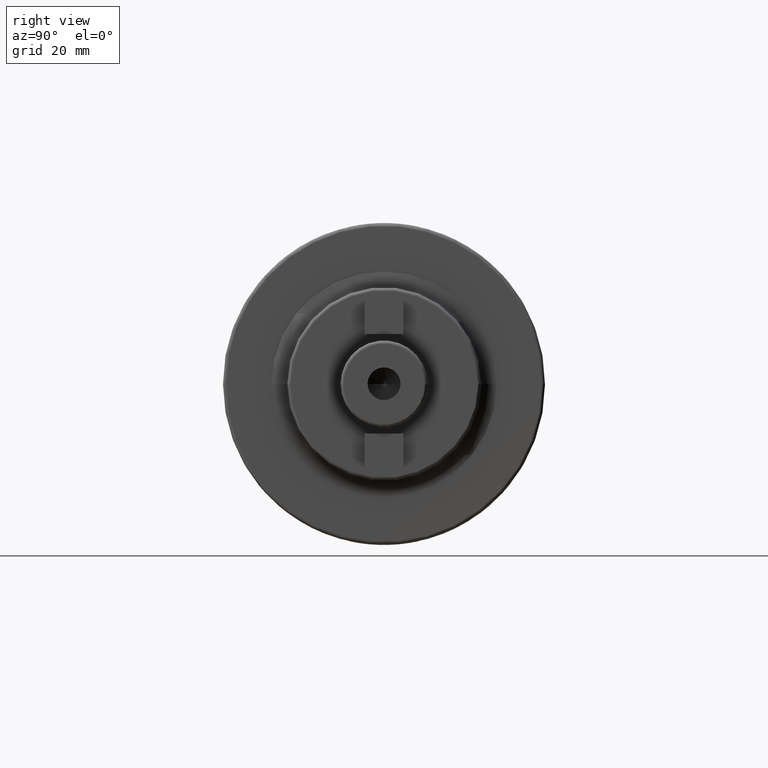
[diagram: clean part render]
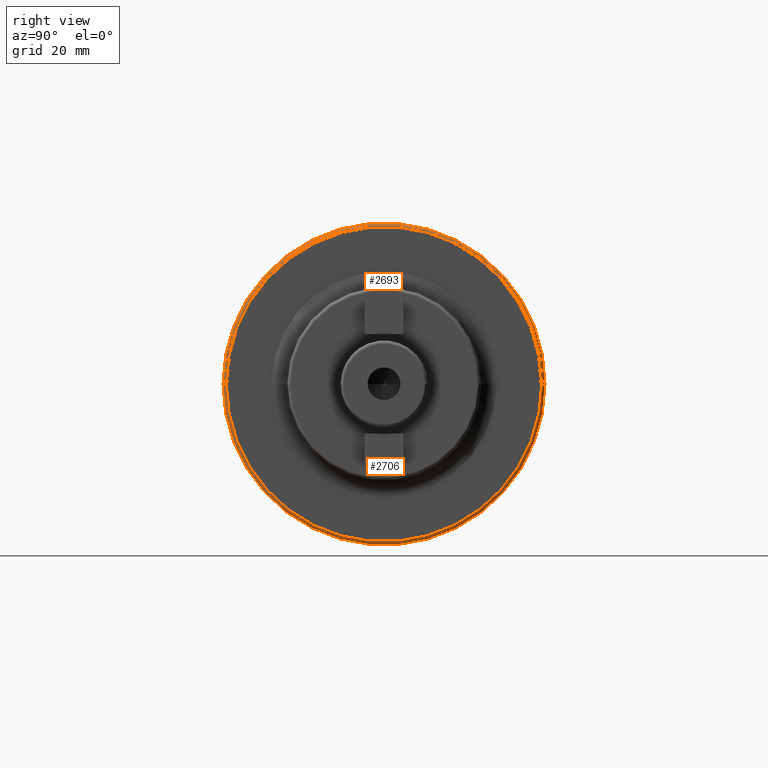
[diagram: same view with one multi-face feature highlighted, each face labeled with its STEP entity id]
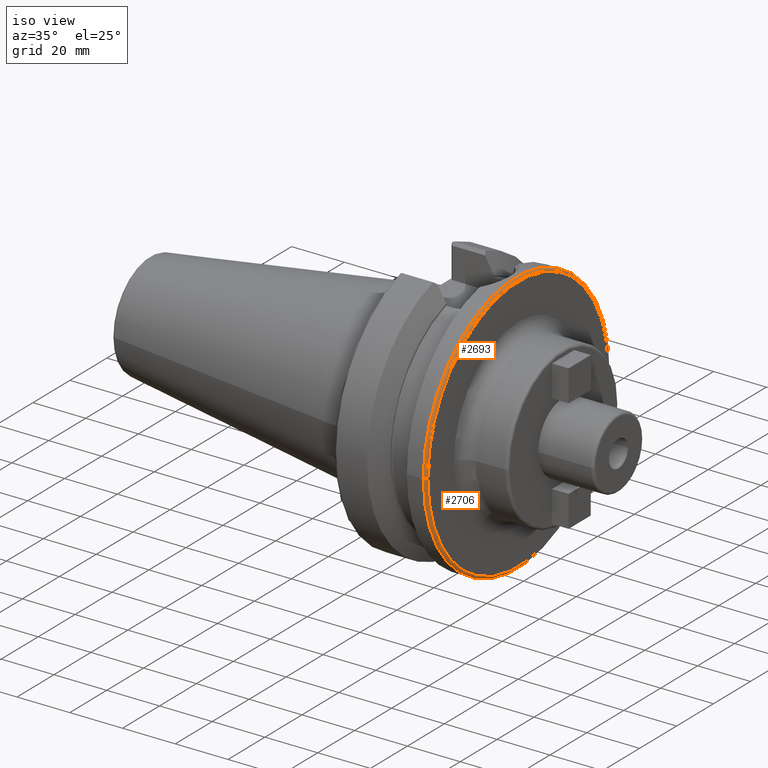
[diagram: same view with one multi-face feature highlighted, each face labeled with its STEP entity id]
A machine part, right view. The highlighted faces form ONE feature: a constant-radius fillet chain: 2 tangent blend faces with common blend radius 1 mm. The faces share edges in the B-rep.
A second angle (iso view) of the same feature is appended — it is thin or edge-on in the first view.
Their STEP definitions:
[1] entity #2706 (Torus):
#254=CARTESIAN_POINT('',(3.7E1,0.E0,0.E0));
#255=DIRECTION('',(-1.E0,0.E0,0.E0));
#256=DIRECTION('',(0.E0,1.E0,0.E0));
#257=AXIS2_PLACEMENT_3D('',#254,#255,#256);
#819=CARTESIAN_POINT('',(3.7E1,4.89875E1,0.E0));
#820=DIRECTION('',(0.E0,0.E0,1.E0));
#821=DIRECTION('',(1.E0,0.E0,0.E0));
#822=AXIS2_PLACEMENT_3D('',#819,#820,#821);
#824=CARTESIAN_POINT('',(3.7E1,-4.89875E1,-1.199847701465E-14));
#825=DIRECTION('',(0.E0,0.E0,-1.E0));
#826=DIRECTION('',(1.E0,0.E0,0.E0));
#827=AXIS2_PLACEMENT_3D('',#824,#825,#826);
#829=CARTESIAN_POINT('',(3.8E1,0.E0,0.E0));
#830=DIRECTION('',(-1.E0,0.E0,0.E0));
#831=DIRECTION('',(0.E0,1.E0,0.E0));
#832=AXIS2_PLACEMENT_3D('',#829,#830,#831);
#1366=CARTESIAN_POINT('',(3.7E1,4.99875E1,0.E0));
#1367=VERTEX_POINT('',#1366);
#1368=CARTESIAN_POINT('',(3.7E1,-4.99875E1,0.E0));
#1369=VERTEX_POINT('',#1368);
#1436=CARTESIAN_POINT('',(3.8E1,4.89875E1,0.E0));
#1437=VERTEX_POINT('',#1436);
#1438=CARTESIAN_POINT('',(3.8E1,-4.89875E1,-1.199847701465E-14));
#1439=VERTEX_POINT('',#1438);
#2694=CARTESIAN_POINT('',(3.7E1,0.E0,0.E0));
#2695=DIRECTION('',(1.E0,0.E0,0.E0));
#2696=DIRECTION('',(0.E0,-1.E0,0.E0));
#2697=AXIS2_PLACEMENT_3D('',#2694,#2695,#2696);
#2698=TOROIDAL_SURFACE('',#2697,4.89875E1,1.E0);
#2699=ORIENTED_EDGE('',*,*,#2684,.T.);
#2700=ORIENTED_EDGE('',*,*,#1933,.T.);
#2701=ORIENTED_EDGE('',*,*,#2688,.F.);
#2703=ORIENTED_EDGE('',*,*,#2702,.F.);
#2704=EDGE_LOOP('',(#2699,#2700,#2701,#2703));
#2705=FACE_OUTER_BOUND('',#2704,.F.);
#2706=ADVANCED_FACE('',(#2705),#2698,.T.);
#258=CIRCLE('',#257,4.99875E1);
#823=CIRCLE('',#822,1.E0);
#828=CIRCLE('',#827,1.E0);
#833=CIRCLE('',#832,4.89875E1);
#1933=EDGE_CURVE('',#1367,#1369,#258,.T.);
#2684=EDGE_CURVE('',#1437,#1367,#823,.T.);
#2688=EDGE_CURVE('',#1439,#1369,#828,.T.);
#2702=EDGE_CURVE('',#1437,#1439,#833,.T.);
[2] entity #2693 (Torus):
#787=CARTESIAN_POINT('',(3.7E1,0.E0,0.E0));
#788=DIRECTION('',(1.E0,0.E0,0.E0));
#789=DIRECTION('',(0.E0,1.E0,0.E0));
#790=AXIS2_PLACEMENT_3D('',#787,#788,#789);
#814=CARTESIAN_POINT('',(3.8E1,0.E0,0.E0));
#815=DIRECTION('',(1.E0,0.E0,0.E0));
#816=DIRECTION('',(0.E0,1.E0,0.E0));
#817=AXIS2_PLACEMENT_3D('',#814,#815,#816);
#819=CARTESIAN_POINT('',(3.7E1,4.89875E1,0.E0));
#820=DIRECTION('',(0.E0,0.E0,1.E0));
#821=DIRECTION('',(1.E0,0.E0,0.E0));
#822=AXIS2_PLACEMENT_3D('',#819,#820,#821);
#824=CARTESIAN_POINT('',(3.7E1,-4.89875E1,-1.199847701465E-14));
#825=DIRECTION('',(0.E0,0.E0,-1.E0));
#826=DIRECTION('',(1.E0,0.E0,0.E0));
#827=AXIS2_PLACEMENT_3D('',#824,#825,#826);
#1366=CARTESIAN_POINT('',(3.7E1,4.99875E1,0.E0));
#1367=VERTEX_POINT('',#1366);
#1368=CARTESIAN_POINT('',(3.7E1,-4.99875E1,0.E0));
#1369=VERTEX_POINT('',#1368);
#1436=CARTESIAN_POINT('',(3.8E1,4.89875E1,0.E0));
#1437=VERTEX_POINT('',#1436);
#1438=CARTESIAN_POINT('',(3.8E1,-4.89875E1,-1.199847701465E-14));
#1439=VERTEX_POINT('',#1438);
#2679=CARTESIAN_POINT('',(3.7E1,0.E0,0.E0));
#2680=DIRECTION('',(1.E0,0.E0,0.E0));
#2681=DIRECTION('',(0.E0,-1.E0,0.E0));
#2682=AXIS2_PLACEMENT_3D('',#2679,#2680,#2681);
#2683=TOROIDAL_SURFACE('',#2682,4.89875E1,1.E0);
#2685=ORIENTED_EDGE('',*,*,#2684,.F.);
#2687=ORIENTED_EDGE('',*,*,#2686,.T.);
#2689=ORIENTED_EDGE('',*,*,#2688,.T.);
#2690=ORIENTED_EDGE('',*,*,#2670,.F.);
#2691=EDGE_LOOP('',(#2685,#2687,#2689,#2690));
#2692=FACE_OUTER_BOUND('',#2691,.F.);
#2693=ADVANCED_FACE('',(#2692),#2683,.T.);
#791=CIRCLE('',#790,4.99875E1);
#818=CIRCLE('',#817,4.89875E1);
#823=CIRCLE('',#822,1.E0);
#828=CIRCLE('',#827,1.E0);
#2670=EDGE_CURVE('',#1367,#1369,#791,.T.);
#2684=EDGE_CURVE('',#1437,#1367,#823,.T.);
#2686=EDGE_CURVE('',#1437,#1439,#818,.T.);
#2688=EDGE_CURVE('',#1439,#1369,#828,.T.);